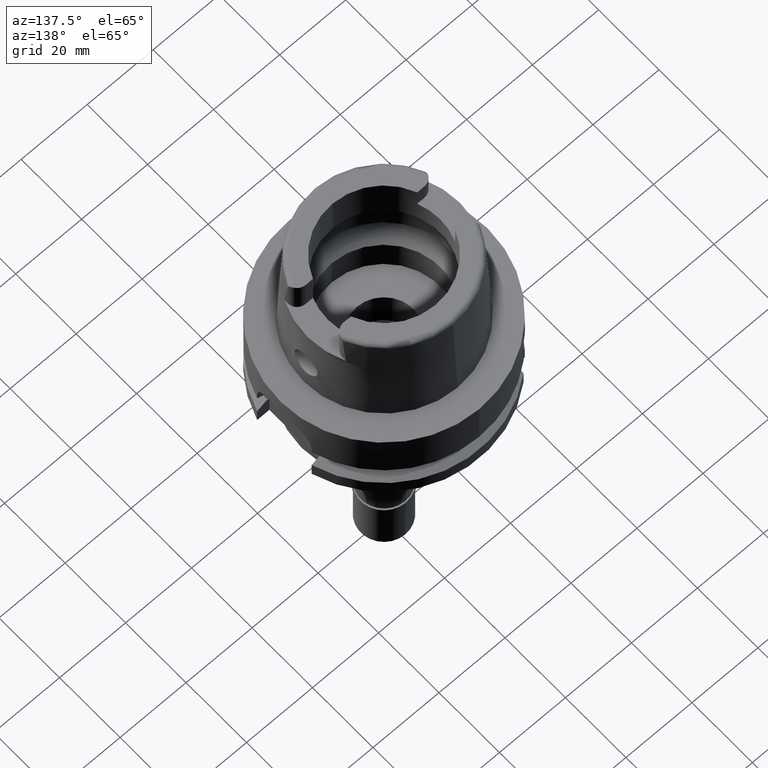
[diagram: clean part render]
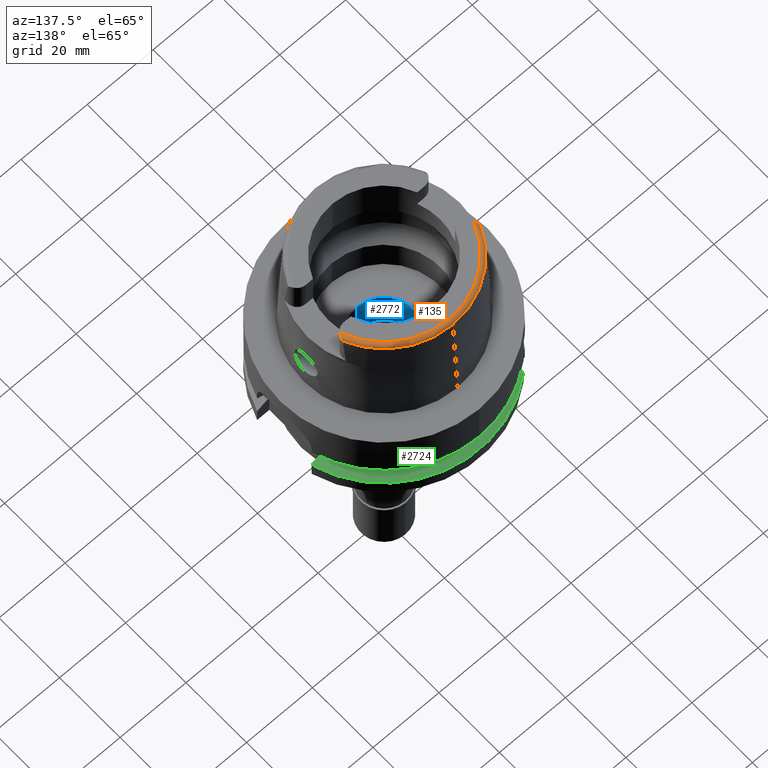
[diagram: same view with three faces highlighted in distinct colors, each labeled with its STEP entity id]
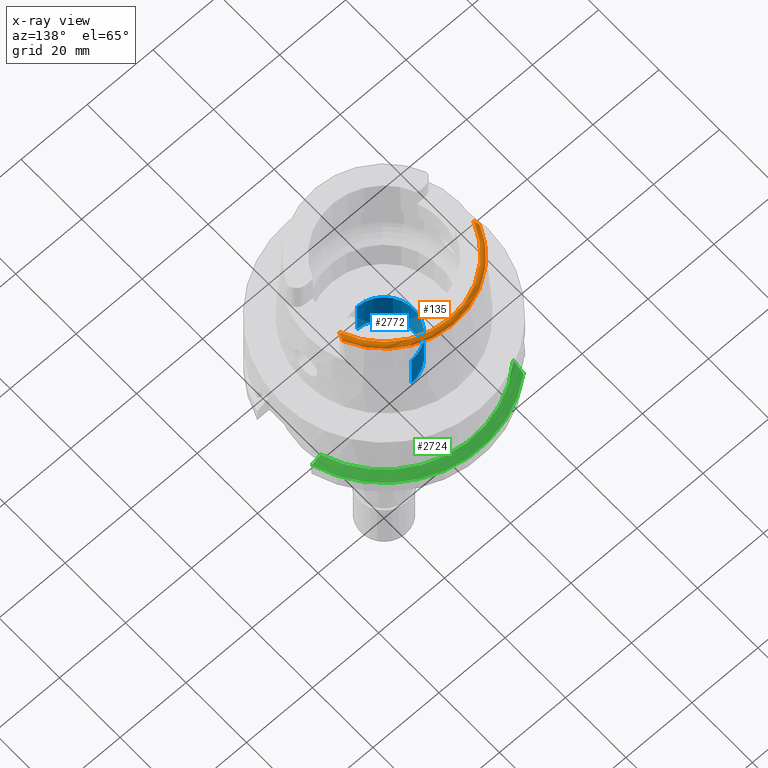
[diagram: x-ray of the same camera — body ghosted, the three highlighted faces saturated]
A machine part, auxiliary view with three faces highlighted in distinct colors.
The next image is the same camera in x-ray (body ghosted, the three faces saturated) — at least one of them is partly hidden behind the body in this view.
Their STEP definitions:

[orange] entity #135 — the highlighted toroidal blend (fillet) surface has major radius 21.5735 mm and minor (blend) radius 1.2 mm.
#135 = ADVANCED_FACE ( 'NONE', ( #4909 ), #3871, .T. ) ;
#155 = AXIS2_PLACEMENT_3D ( 'NONE', #1337, #2997, #3023 ) ;
#196 = CARTESIAN_POINT ( 'NONE',  ( 20.76020096437169826, 8.362265912360504316, 31.68762792754684199 ) ) ;
#224 = CARTESIAN_POINT ( 'NONE',  ( 20.86946451549159320, 9.089306825387625466, 30.96852811357728896 ) ) ;
#252 = CARTESIAN_POINT ( 'NONE',  ( 20.86638105642394336, 9.004701161611741611, 31.13406273454422646 ) ) ;
#299 = CARTESIAN_POINT ( 'NONE',  ( -20.81366301534278307, 8.582809878442692053, 31.54568143620497978 ) ) ;
#325 = CARTESIAN_POINT ( 'NONE',  ( -20.73764025401458966, 8.286829756832258198, 31.72988971675508196 ) ) ;
#352 = CARTESIAN_POINT ( 'NONE',  ( -20.72512770412694749, 8.247328121053145722, 31.75112516692586695 ) ) ;
#384 = DIRECTION ( 'NONE',  ( 0.0000000000000000000, 0.0000000000000000000, -1.000000000000000000 ) ) ;
#548 = DIRECTION ( 'NONE',  ( 0.0000000000000000000, 1.000000000000000000, 0.0000000000000000000 ) ) ;
#599 = CARTESIAN_POINT ( 'NONE',  ( 20.86117679632986821, 8.920429529512563960, 31.24818316976342913 ) ) ;
#688 = CARTESIAN_POINT ( 'NONE',  ( 20.71252373447638817, 8.207793077694732986, 31.77223283938405274 ) ) ;
#736 = CARTESIAN_POINT ( 'NONE',  ( -20.77892699063850301, 8.430060155111577913, 31.64762331331390754 ) ) ;
#766 = CARTESIAN_POINT ( 'NONE',  ( -20.50258499244293020, 7.741065057263074145, 31.95165333069514801 ) ) ;
#897 = DIRECTION ( 'NONE',  ( 0.0000000000000000000, 0.0000000000000000000, -1.000000000000000000 ) ) ;
#902 = AXIS2_PLACEMENT_3D ( 'NONE', #2628, #384, #548 ) ;
#1004 = CARTESIAN_POINT ( 'NONE',  ( 20.26871835884000106, 7.388795116668999796, 32.00000000000000000 ) ) ;
#1032 = CARTESIAN_POINT ( 'NONE',  ( 20.41321931530009337, 7.575756318891368579, 32.00000000000000000 ) ) ;
#1061 = CARTESIAN_POINT ( 'NONE',  ( 20.80007187915708045, 8.517604740962321230, 31.59131737050484290 ) ) ;
#1141 = CARTESIAN_POINT ( 'NONE',  ( -20.80900722363668720, 8.560020812701724324, 31.56182091098699161 ) ) ;
#1197 = CARTESIAN_POINT ( 'NONE',  ( -20.79478320187418561, 8.495708035104462041, 31.60540013611856125 ) ) ;
#1337 = CARTESIAN_POINT ( 'NONE',  ( 0.0000000000000000000, 0.0000000000000000000, 32.00000000000000000 ) ) ;
#1429 = CARTESIAN_POINT ( 'NONE',  ( 20.76654340887676398, 8.384921523987165060, 31.67435966267954939 ) ) ;
#1430 = VERTEX_POINT ( 'NONE', #1845 ) ;
#1486 = CARTESIAN_POINT ( 'NONE',  ( 20.84592241327308315, 8.777123049003993316, 31.39132639649984569 ) ) ;
#1513 = CARTESIAN_POINT ( 'NONE',  ( 20.82138671357918724, 8.622650685924964975, 31.51662986639583508 ) ) ;
#1565 = CARTESIAN_POINT ( 'NONE',  ( -20.59542905933376034, 7.922036152542301757, 31.89461936924960384 ) ) ;
#1616 = CARTESIAN_POINT ( 'NONE',  ( -20.86974110888999689, 9.111383544799000589, 30.85992740308000393 ) ) ;
#1622 = ORIENTED_EDGE ( 'NONE', *, *, #4220, .F. ) ;
#1636 = VERTEX_POINT ( 'NONE', #4107 ) ;
#1671 = CARTESIAN_POINT ( 'NONE',  ( -20.86078973812547943, 8.918356189793604116, 31.24801390105443133 ) ) ;
#1762 = CARTESIAN_POINT ( 'NONE',  ( 20.86974092012000170, 9.111384045666000020, 30.85992712280000205 ) ) ;
#1845 = CARTESIAN_POINT ( 'NONE',  ( -20.26871835884000106, 7.388795116669998997, 32.00000000000000000 ) ) ;
#1872 = CARTESIAN_POINT ( 'NONE',  ( 20.67810881849874249, 8.115655615088039454, 31.81542045977519351 ) ) ;
#1902 = CARTESIAN_POINT ( 'NONE',  ( 20.64687480016244336, 8.038392394181098410, 31.84893967830881323 ) ) ;
#1931 = CARTESIAN_POINT ( 'NONE',  ( 20.85680583469687477, 8.867963635276723267, 31.30584349106812425 ) ) ;
#1948 = ORIENTED_EDGE ( 'NONE', *, *, #4602, .F. ) ;
#1956 = CARTESIAN_POINT ( 'NONE',  ( 20.73815179236623152, 8.286827711635213589, 31.73055289320469896 ) ) ;
#1976 = CARTESIAN_POINT ( 'NONE',  ( -20.83215081291004722, 8.678175786987837981, 31.47614255057702692 ) ) ;
#2014 = DIRECTION ( 'NONE',  ( 0.0000000000000000000, 0.0000000000000000000, -1.000000000000000000 ) ) ;
#2033 = CARTESIAN_POINT ( 'NONE',  ( -20.86948686486216431, 9.049253017447711045, 31.07805048189020880 ) ) ;
#2073 = CARTESIAN_POINT ( 'NONE',  ( 0.0000000000000000000, 22.77198729362000051, 30.85992712280000205 ) ) ;
#2139 = CIRCLE ( 'NONE', #902, 22.77198729362000051 ) ;
#2261 = B_SPLINE_CURVE_WITH_KNOTS ( 'NONE', 3,
 ( #1762, #5117, #224, #4403, #4431, #252, #5204, #599, #1931, #1486, #3529, #2371, #3610, #5288, #1513, #3175, #1061, #3146, #4820, #1429, #196, #2753, #1956, #688, #1872, #5230, #4461, #1902, #3632, #1032, #1004 ),
 .UNSPECIFIED., .F., .F.,
 ( 4, 2, 2, 2, 2, 2, 2, 2, 2, 1, 2, 2, 1, 1, 2, 2, 4 ),
 ( 0.0000000000000000000, 0.1249999999999903133, 0.1874999999999854561, 0.2499999999999806266, 0.3749999999999736322, 0.4374999999999699130, 0.4687499999999671374, 0.4999999999999643618, 0.5624999999999593658, 0.5937499999999586997, 0.6093749999999583666, 0.6249999999999580336, 0.6874999999999621414, 0.7187499999999636957, 0.7343749999999652500, 0.7499999999999668043, 1.000000000000000000 ),
 .UNSPECIFIED. ) ;
#2286 = AXIS2_PLACEMENT_3D ( 'NONE', #4520, #2014, #3281 ) ;
#2371 = CARTESIAN_POINT ( 'NONE',  ( 20.83362911801044248, 8.693410332869973445, 31.46189043334273450 ) ) ;
#2392 = CARTESIAN_POINT ( 'NONE',  ( -20.69371963744170273, 8.155133711292320342, 31.79794630465790917 ) ) ;
#2401 = CIRCLE ( 'NONE', #4954, 22.77198729362000407 ) ;
#2464 = CARTESIAN_POINT ( 'NONE',  ( -20.66293916528846353, 8.076200837320042680, 31.83340171528575979 ) ) ;
#2501 = CARTESIAN_POINT ( 'NONE',  ( 0.0000000000000000000, 0.0000000000000000000, 30.85992712280000205 ) ) ;
#2535 = DIRECTION ( 'NONE',  ( -0.9164655183265837390, 0.4001136759951928745, 0.0000000000000000000 ) ) ;
#2628 = CARTESIAN_POINT ( 'NONE',  ( 0.0000000000000000000, 0.0000000000000000000, 30.85992712280000205 ) ) ;
#2685 = EDGE_CURVE ( 'NONE', #1430, #1636, #2883, .T. ) ;
#2689 = ORIENTED_EDGE ( 'NONE', *, *, #5020, .F. ) ;
#2723 = ORIENTED_EDGE ( 'NONE', *, *, #5198, .F. ) ;
#2753 = CARTESIAN_POINT ( 'NONE',  ( 20.75743629321447159, 8.352576552213466954, 31.69322961258627558 ) ) ;
#2824 = CARTESIAN_POINT ( 'NONE',  ( -20.84229305345268557, 8.746831869085417210, 31.41983214322456419 ) ) ;
#2856 = CARTESIAN_POINT ( 'NONE',  ( -20.61512582130914595, 7.965361961753218978, 31.87818905585303852 ) ) ;
#2883 = CIRCLE ( 'NONE', #155, 21.57348458609000375 ) ;
#2997 = DIRECTION ( 'NONE',  ( 0.0000000000000000000, 0.0000000000000000000, -1.000000000000000000 ) ) ;
#3023 = DIRECTION ( 'NONE',  ( 0.0009289215035771249650, 0.9999995685523269673, 0.0000000000000000000 ) ) ;
#3146 = CARTESIAN_POINT ( 'NONE',  ( 20.78421353946880501, 8.451947259678870950, 31.63354524955680347 ) ) ;
#3175 = CARTESIAN_POINT ( 'NONE',  ( 20.80930132492009221, 8.560311842702947871, 31.56208852471458570 ) ) ;
#3191 = VERTEX_POINT ( 'NONE', #3915 ) ;
#3250 = CARTESIAN_POINT ( 'NONE',  ( -20.76701666754522435, 8.385243045725413680, 31.67468725976183563 ) ) ;
#3261 = ORIENTED_EDGE ( 'NONE', *, *, #2685, .T. ) ;
#3274 = CARTESIAN_POINT ( 'NONE',  ( -20.40894639590567650, 7.582128065754985435, 31.98791333267378434 ) ) ;
#3281 = DIRECTION ( 'NONE',  ( -0.0009289215035770252184, -0.9999995685523270783, 0.0000000000000000000 ) ) ;
#3301 = CARTESIAN_POINT ( 'NONE',  ( -20.34096619152986918, 7.482272294870575102, 32.00000000000000000 ) ) ;
#3355 = CARTESIAN_POINT ( 'NONE',  ( -20.86266174676114105, 8.943446983420287211, 31.21778165685780948 ) ) ;
#3529 = CARTESIAN_POINT ( 'NONE',  ( 20.84156685106539086, 8.744821972940227894, 31.41965276888954151 ) ) ;
#3610 = CARTESIAN_POINT ( 'NONE',  ( 20.83074875634360268, 8.675780054880595671, 31.47592767247191858 ) ) ;
#3632 = CARTESIAN_POINT ( 'NONE',  ( 20.54067307050495472, 7.788459993654782032, 31.95166069705881995 ) ) ;
#3659 = CARTESIAN_POINT ( 'NONE',  ( -20.53240824100728190, 7.795565973457695641, 31.93654499653739975 ) ) ;
#3773 = CARTESIAN_POINT ( 'NONE',  ( -20.85607729110255448, 8.865933921842552579, 31.30568290610701609 ) ) ;
#3871 = TOROIDAL_SURFACE ( 'NONE', #2286, 21.57348458609000019, 1.199999999999999956 ) ;
#3874 = EDGE_LOOP ( 'NONE', ( #2723, #3261, #2689, #1622, #1948 ) ) ;
#3888 = VERTEX_POINT ( 'NONE', #4932 ) ;
#3915 = CARTESIAN_POINT ( 'NONE',  ( 20.86974092012000170, 9.111384045666000020, 30.85992712280000205 ) ) ;
#3956 = VERTEX_POINT ( 'NONE', #2073 ) ;
#4062 = CARTESIAN_POINT ( 'NONE',  ( -20.26871835884000106, 7.388795116669998997, 32.00000000000000000 ) ) ;
#4107 = CARTESIAN_POINT ( 'NONE',  ( 20.26871835884000106, 7.388795116668999796, 32.00000000000000000 ) ) ;
#4122 = CARTESIAN_POINT ( 'NONE',  ( -20.57481086083311439, 7.879513631411765751, 31.90934999505342518 ) ) ;
#4145 = CARTESIAN_POINT ( 'NONE',  ( -20.75023820706299915, 8.328034542420967412, 31.70716114488554638 ) ) ;
#4220 = EDGE_CURVE ( 'NONE', #3956, #3191, #2139, .T. ) ;
#4403 = CARTESIAN_POINT ( 'NONE',  ( 20.86837835930697338, 9.052594096543289837, 31.05100939785356928 ) ) ;
#4422 = B_SPLINE_CURVE_WITH_KNOTS ( 'NONE', 3,
 ( #4062, #3301, #3274, #766, #3659, #4122, #1565, #2856, #4534, #5385, #2464, #2392, #352, #325, #5000, #4145, #3250, #736, #1197, #4564, #1141, #299, #1976, #2824, #5443, #3773, #1671, #3355, #2033, #4508, #1616 ),
 .UNSPECIFIED., .F., .F.,
 ( 4, 2, 2, 1, 2, 2, 1, 1, 2, 2, 2, 2, 2, 2, 2, 2, 4 ),
 ( 0.0000000000000000000, 0.1249999999999936440, 0.1874999999999909517, 0.2187499999999894529, 0.2343749999999890643, 0.2499999999999886202, 0.3124999999999845679, 0.3437499999999845124, 0.3593749999999852340, 0.3749999999999859002, 0.4374999999999909517, 0.4687499999999917288, 0.4999999999999924505, 0.6249999999999866773, 0.6874999999999882316, 0.7499999999999897859, 1.000000000000000000 ),
 .UNSPECIFIED. ) ;
#4431 = CARTESIAN_POINT ( 'NONE',  ( 20.86787460160788044, 9.038118314225323857, 31.07861756976188161 ) ) ;
#4461 = CARTESIAN_POINT ( 'NONE',  ( 20.65166748826842280, 8.049942064197903591, 31.84406726673928745 ) ) ;
#4508 = CARTESIAN_POINT ( 'NONE',  ( -20.86956525207023105, 9.098270490043582015, 30.96808114229543918 ) ) ;
#4520 = CARTESIAN_POINT ( 'NONE',  ( 0.0000000000000000000, 0.0000000000000000000, 30.80000000000000071 ) ) ;
#4534 = CARTESIAN_POINT ( 'NONE',  ( -20.62804702593019002, 7.994421898638600865, 31.86685780523471223 ) ) ;
#4564 = CARTESIAN_POINT ( 'NONE',  ( -20.79973367615856361, 8.517328017515096050, 31.59105453413284792 ) ) ;
#4602 = EDGE_CURVE ( 'NONE', #3888, #3956, #2401, .T. ) ;
#4820 = CARTESIAN_POINT ( 'NONE',  ( 20.77578069238911240, 8.418719736848435886, 31.65425534167443899 ) ) ;
#4909 = FACE_OUTER_BOUND ( 'NONE', #3874, .T. ) ;
#4932 = CARTESIAN_POINT ( 'NONE',  ( -20.86974110888999689, 9.111383544799000589, 30.85992740308000393 ) ) ;
#4954 = AXIS2_PLACEMENT_3D ( 'NONE', #2501, #897, #2535 ) ;
#5000 = CARTESIAN_POINT ( 'NONE',  ( -20.74577317738076943, 8.313158301110494364, 31.71547291702221827 ) ) ;
#5020 = EDGE_CURVE ( 'NONE', #3191, #1636, #2261, .T. ) ;
#5117 = CARTESIAN_POINT ( 'NONE',  ( 20.86965318841544104, 9.104828073603288274, 30.91399823265790303 ) ) ;
#5198 = EDGE_CURVE ( 'NONE', #1430, #3888, #4422, .T. ) ;
#5204 = CARTESIAN_POINT ( 'NONE',  ( 20.86545057972833916, 8.986679264281500323, 31.16068511128108298 ) ) ;
#5230 = CARTESIAN_POINT ( 'NONE',  ( 20.66237615870907973, 8.076218389713451629, 31.83276394348178684 ) ) ;
#5288 = CARTESIAN_POINT ( 'NONE',  ( 20.82446251458341990, 8.639548918662930177, 31.50391818601984539 ) ) ;
#5385 = CARTESIAN_POINT ( 'NONE',  ( -20.63507855225454435, 8.010630666181043580, 31.86034956128539619 ) ) ;
#5443 = CARTESIAN_POINT ( 'NONE',  ( -20.85317682432976483, 8.837672409542742358, 31.33434758392079189 ) ) ;

[blue] entity #2772 — the highlighted cylindrical surface (partial cylindrical patch) has radius 9 mm, axis along (0, 0, -1).
#357 = CARTESIAN_POINT ( 'NONE',  ( 0.0000000000000000000, 0.0000000000000000000, -9.950000000000001066 ) ) ;
#557 = CARTESIAN_POINT ( 'NONE',  ( 0.0000000000000000000, 9.000000000000000000, -9.950000000000001066 ) ) ;
#588 = LINE ( 'NONE', #2283, #1653 ) ;
#674 = ORIENTED_EDGE ( 'NONE', *, *, #2859, .T. ) ;
#816 = CARTESIAN_POINT ( 'NONE',  ( 0.0000000000000000000, 9.000000000000000000, -21.94999999999999929 ) ) ;
#849 = VERTEX_POINT ( 'NONE', #557 ) ;
#1194 = VECTOR ( 'NONE', #2233, 1000.000000000000000 ) ;
#1347 = CARTESIAN_POINT ( 'NONE',  ( 0.0000000000000000000, -9.000000000000000000, -21.94999999999999929 ) ) ;
#1421 = DIRECTION ( 'NONE',  ( 0.0000000000000000000, 0.0000000000000000000, -1.000000000000000000 ) ) ;
#1653 = VECTOR ( 'NONE', #3960, 1000.000000000000000 ) ;
#1698 = AXIS2_PLACEMENT_3D ( 'NONE', #4233, #3860, #2202 ) ;
#1841 = CARTESIAN_POINT ( 'NONE',  ( 0.0000000000000000000, 0.0000000000000000000, 38.64999999999999858 ) ) ;
#2125 = EDGE_LOOP ( 'NONE', ( #674, #3038, #2406, #4271 ) ) ;
#2202 = DIRECTION ( 'NONE',  ( 0.0000000000000000000, -1.000000000000000000, 0.0000000000000000000 ) ) ;
#2216 = VERTEX_POINT ( 'NONE', #3528 ) ;
#2233 = DIRECTION ( 'NONE',  ( 0.0000000000000000000, 0.0000000000000000000, 1.000000000000000000 ) ) ;
#2259 = AXIS2_PLACEMENT_3D ( 'NONE', #357, #2945, #3695 ) ;
#2283 = CARTESIAN_POINT ( 'NONE',  ( 0.0000000000000000000, 9.000000000000000000, -21.94999999999999929 ) ) ;
#2406 = ORIENTED_EDGE ( 'NONE', *, *, #4892, .T. ) ;
#2519 = CIRCLE ( 'NONE', #2259, 9.000000000000000000 ) ;
#2772 = ADVANCED_FACE ( 'NONE', ( #3381 ), #2969, .F. ) ;
#2826 = EDGE_CURVE ( 'NONE', #2981, #849, #588, .T. ) ;
#2859 = EDGE_CURVE ( 'NONE', #849, #5264, #2519, .T. ) ;
#2945 = DIRECTION ( 'NONE',  ( 0.0000000000000000000, 0.0000000000000000000, 1.000000000000000000 ) ) ;
#2969 = CYLINDRICAL_SURFACE ( 'NONE', #4725, 9.000000000000000000 ) ;
#2981 = VERTEX_POINT ( 'NONE', #816 ) ;
#3038 = ORIENTED_EDGE ( 'NONE', *, *, #3180, .F. ) ;
#3119 = CIRCLE ( 'NONE', #1698, 9.000000000000000000 ) ;
#3180 = EDGE_CURVE ( 'NONE', #2216, #5264, #5234, .T. ) ;
#3381 = FACE_OUTER_BOUND ( 'NONE', #2125, .T. ) ;
#3520 = DIRECTION ( 'NONE',  ( 0.0000000000000000000, -1.000000000000000000, 0.0000000000000000000 ) ) ;
#3528 = CARTESIAN_POINT ( 'NONE',  ( 0.0000000000000000000, -9.000000000000000000, -21.94999999999999929 ) ) ;
#3695 = DIRECTION ( 'NONE',  ( 0.0000000000000000000, 1.000000000000000000, 0.0000000000000000000 ) ) ;
#3860 = DIRECTION ( 'NONE',  ( 0.0000000000000000000, 0.0000000000000000000, -1.000000000000000000 ) ) ;
#3960 = DIRECTION ( 'NONE',  ( 0.0000000000000000000, 0.0000000000000000000, 1.000000000000000000 ) ) ;
#4233 = CARTESIAN_POINT ( 'NONE',  ( 0.0000000000000000000, 0.0000000000000000000, -21.94999999999999929 ) ) ;
#4271 = ORIENTED_EDGE ( 'NONE', *, *, #2826, .T. ) ;
#4725 = AXIS2_PLACEMENT_3D ( 'NONE', #1841, #1421, #3520 ) ;
#4892 = EDGE_CURVE ( 'NONE', #2216, #2981, #3119, .T. ) ;
#5234 = LINE ( 'NONE', #1347, #1194 ) ;
#5264 = VERTEX_POINT ( 'NONE', #5414 ) ;
#5414 = CARTESIAN_POINT ( 'NONE',  ( 0.0000000000000000000, -9.000000000000000000, -9.950000000000001066 ) ) ;

[green] entity #2724 — the highlighted conical surface has half-angle 60 deg.
#76 = DIRECTION ( 'NONE',  ( 0.0000000000000000000, 0.0000000000000000000, -1.000000000000000000 ) ) ;
#345 = VERTEX_POINT ( 'NONE', #1451 ) ;
#942 = AXIS2_PLACEMENT_3D ( 'NONE', #4225, #76, #4669 ) ;
#1010 = ORIENTED_EDGE ( 'NONE', *, *, #4614, .T. ) ;
#1107 = VERTEX_POINT ( 'NONE', #3813 ) ;
#1179 = CARTESIAN_POINT ( 'NONE',  ( 29.87646844048000361, 8.999999854520002174, -21.20573147704999784 ) ) ;
#1246 = DIRECTION ( 'NONE',  ( -0.6349206349206079070, 0.7725773665802099233, 0.0000000000000000000 ) ) ;
#1257 = CIRCLE ( 'NONE', #5223, 28.89759526419000224 ) ;
#1320 = DIRECTION ( 'NONE',  ( 0.0000000000000000000, 1.000000000000000000, 0.0000000000000000000 ) ) ;
#1451 = CARTESIAN_POINT ( 'NONE',  ( 30.18691773962000013, 8.999999854520002174, -21.37749790142999728 ) ) ;
#1481 = EDGE_CURVE ( 'NONE', #1977, #345, #2525, .T. ) ;
#1521 = CARTESIAN_POINT ( 'NONE',  ( 30.18691773962000013, 8.999999854520002174, -21.37749790142999728 ) ) ;
#1579 = CARTESIAN_POINT ( 'NONE',  ( 28.35172987202000172, 9.000000320139999843, -20.36455114850999948 ) ) ;
#1589 = DIRECTION ( 'NONE',  ( 0.0000000000000000000, 0.0000000000000000000, -1.000000000000000000 ) ) ;
#1700 = DIRECTION ( 'NONE',  ( 0.0000000000000000000, 0.0000000000000000000, -1.000000000000000000 ) ) ;
#1977 = VERTEX_POINT ( 'NONE', #5268 ) ;
#2316 = CARTESIAN_POINT ( 'NONE',  ( -19.99999697716999947, 24.33618953150000053, -21.37748823999999814 ) ) ;
#2451 = CARTESIAN_POINT ( 'NONE',  ( 27.75581610504000096, 8.999999272419000107, -20.03709572704999786 ) ) ;
#2525 = CIRCLE ( 'NONE', #2624, 31.50000000000000711 ) ;
#2624 = AXIS2_PLACEMENT_3D ( 'NONE', #3353, #1589, #1246 ) ;
#2724 = ADVANCED_FACE ( 'NONE', ( #4281 ), #2784, .T. ) ;
#2754 = ORIENTED_EDGE ( 'NONE', *, *, #3883, .F. ) ;
#2784 = CONICAL_SURFACE ( 'NONE', #942, 30.19879763209999979, 1.047197551196400456 ) ;
#2916 = CARTESIAN_POINT ( 'NONE',  ( 0.0000000000000000000, 0.0000000000000000000, -19.87500000000000000 ) ) ;
#3117 = CARTESIAN_POINT ( 'NONE',  ( -19.99998591410000159, 20.85848281364000201, -19.87500000000000000 ) ) ;
#3262 = CARTESIAN_POINT ( 'NONE',  ( 27.46035345827000285, 9.000000000000000000, -19.87500000000000000 ) ) ;
#3353 = CARTESIAN_POINT ( 'NONE',  ( 0.0000000000000000000, 0.0000000000000000000, -21.37749907476000288 ) ) ;
#3533 = B_SPLINE_CURVE_WITH_KNOTS ( 'NONE', 3,
 ( #1521, #1179, #3620, #1579, #2451, #3262 ),
 .UNSPECIFIED., .F., .F.,
 ( 4, 1, 1, 4 ),
 ( 0.0000000000000000000, 0.3333333333333000081, 0.6666666666667000474, 1.000000000000000000 ),
 .UNSPECIFIED. ) ;
#3539 = ORIENTED_EDGE ( 'NONE', *, *, #5034, .T. ) ;
#3581 = CARTESIAN_POINT ( 'NONE',  ( -19.99999396833548104, 23.13594272559172538, -20.84213052925520770 ) ) ;
#3620 = CARTESIAN_POINT ( 'NONE',  ( 29.26057315167999917, 8.999999970879999367, -20.86540014588000247 ) ) ;
#3813 = CARTESIAN_POINT ( 'NONE',  ( 27.46035345827000285, 9.000000000000000000, -19.87500000000000000 ) ) ;
#3883 = EDGE_CURVE ( 'NONE', #345, #1107, #3533, .T. ) ;
#3996 = CARTESIAN_POINT ( 'NONE',  ( -19.99997157143832638, 21.97734632294608303, -20.34131021940153161 ) ) ;
#4225 = CARTESIAN_POINT ( 'NONE',  ( 0.0000000000000000000, 0.0000000000000000000, -20.62624953738000144 ) ) ;
#4281 = FACE_OUTER_BOUND ( 'NONE', #4618, .T. ) ;
#4614 = EDGE_CURVE ( 'NONE', #5189, #1107, #1257, .T. ) ;
#4618 = EDGE_LOOP ( 'NONE', ( #3539, #1010, #2754, #4742 ) ) ;
#4669 = DIRECTION ( 'NONE',  ( 0.0000000000000000000, -1.000000000000000000, 0.0000000000000000000 ) ) ;
#4742 = ORIENTED_EDGE ( 'NONE', *, *, #1481, .F. ) ;
#4945 = CARTESIAN_POINT ( 'NONE',  ( -19.99998591410000159, 20.85848281364000201, -19.87500000000000000 ) ) ;
#5034 = EDGE_CURVE ( 'NONE', #1977, #5189, #5145, .T. ) ;
#5145 = B_SPLINE_CURVE_WITH_KNOTS ( 'NONE', 3,
 ( #2316, #3581, #3996, #3117 ),
 .UNSPECIFIED., .F., .F.,
 ( 4, 4 ),
 ( 0.0000000000000000000, 1.000000000000000000 ),
 .UNSPECIFIED. ) ;
#5189 = VERTEX_POINT ( 'NONE', #4945 ) ;
#5223 = AXIS2_PLACEMENT_3D ( 'NONE', #2916, #1700, #1320 ) ;
#5268 = CARTESIAN_POINT ( 'NONE',  ( -19.99999697716999947, 24.33618953150000053, -21.37748823999999814 ) ) ;